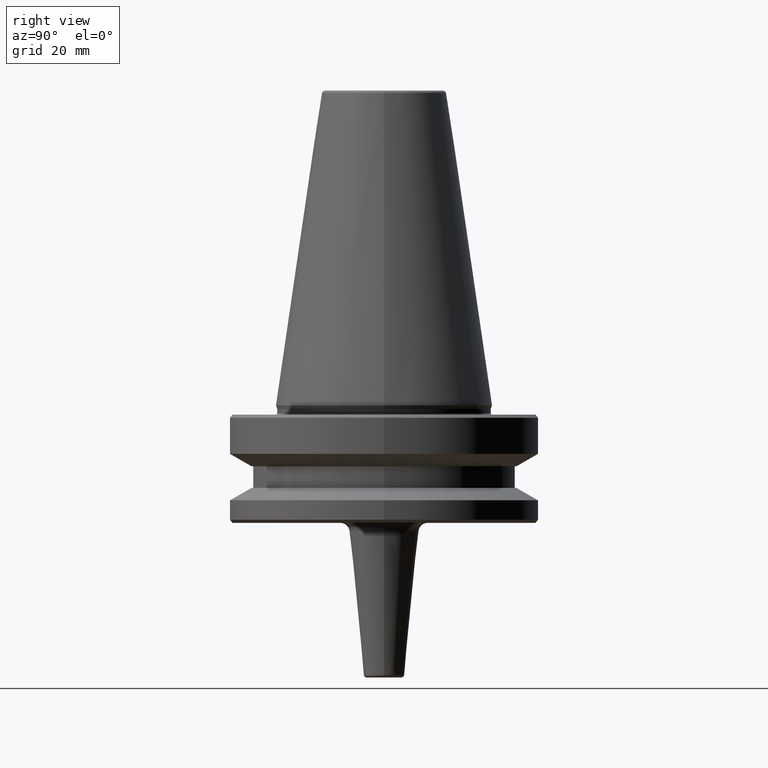
[diagram: clean part render]
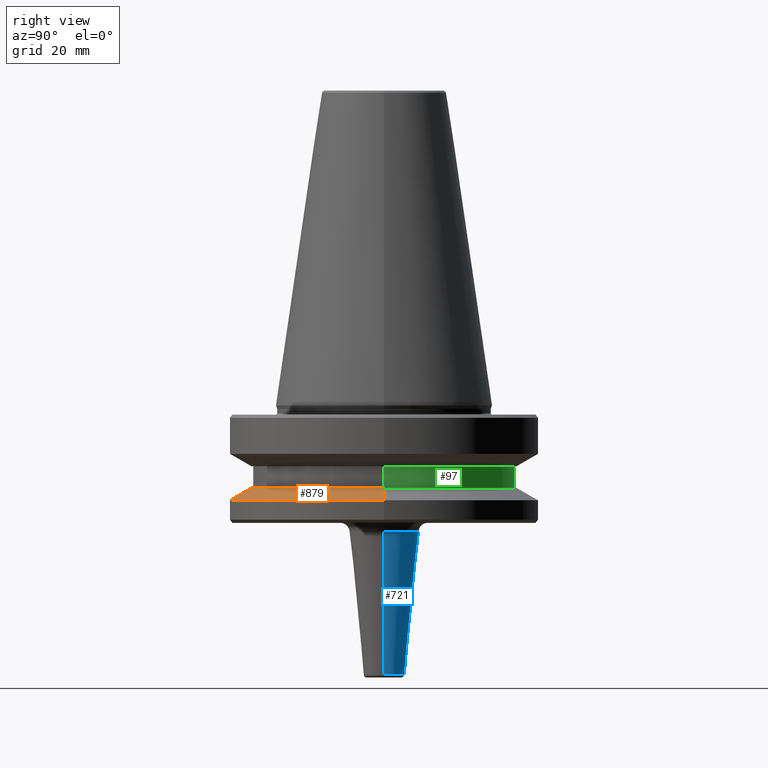
[diagram: same view with three faces highlighted in distinct colors, each labeled with its STEP entity id]
A machine part, right view with three faces highlighted in distinct colors.
Their STEP definitions:

[orange] entity #879 — the highlighted conical surface has half-angle 60 deg.
#6 = AXIS2_PLACEMENT_3D ( 'NONE', #698, #837, #51 ) ;
#46 = AXIS2_PLACEMENT_3D ( 'NONE', #696, #863, #950 ) ;
#51 = DIRECTION ( 'NONE',  ( 1.000000000000000000, 0.0000000000000000000, 0.0000000000000000000 ) ) ;
#122 = VERTEX_POINT ( 'NONE', #685 ) ;
#128 = LINE ( 'NONE', #849, #940 ) ;
#136 = EDGE_LOOP ( 'NONE', ( #668, #662, #163, #933 ) ) ;
#163 = ORIENTED_EDGE ( 'NONE', *, *, #255, .T. ) ;
#174 = VERTEX_POINT ( 'NONE', #926 ) ;
#217 = EDGE_CURVE ( 'NONE', #174, #219, #688, .T. ) ;
#219 = VERTEX_POINT ( 'NONE', #342 ) ;
#220 = DIRECTION ( 'NONE',  ( -0.8660254037844383700, 0.0000000000000000000, -0.5000000000000004400 ) ) ;
#243 = VERTEX_POINT ( 'NONE', #682 ) ;
#255 = EDGE_CURVE ( 'NONE', #122, #243, #128, .T. ) ;
#265 = EDGE_CURVE ( 'NONE', #243, #219, #734, .T. ) ;
#332 = EDGE_CURVE ( 'NONE', #122, #174, #632, .T. ) ;
#342 = CARTESIAN_POINT ( 'NONE',  ( 50.00000000000000000, 0.0000000000000000000, -30.69977999677324500 ) ) ;
#381 = DIRECTION ( 'NONE',  ( 1.000000000000000000, 0.0000000000000000000, 0.0000000000000000000 ) ) ;
#385 = DIRECTION ( 'NONE',  ( 0.8660254037844383700, 1.060575238724906500E-016, -0.5000000000000004400 ) ) ;
#410 = AXIS2_PLACEMENT_3D ( 'NONE', #780, #934, #381 ) ;
#632 = CIRCLE ( 'NONE', #410, 43.07217782649105000 ) ;
#633 = CARTESIAN_POINT ( 'NONE',  ( 50.00000000000000000, 6.123233995736766100E-015, -30.69977999677324500 ) ) ;
#662 = ORIENTED_EDGE ( 'NONE', *, *, #332, .F. ) ;
#668 = ORIENTED_EDGE ( 'NONE', *, *, #217, .F. ) ;
#682 = CARTESIAN_POINT ( 'NONE',  ( -50.00000000000000000, 6.123233995736766100E-015, -30.69977999677324500 ) ) ;
#685 = CARTESIAN_POINT ( 'NONE',  ( -43.07217782649105000, 0.0000000000000000000, -26.69999999999998900 ) ) ;
#688 = LINE ( 'NONE', #633, #864 ) ;
#696 = CARTESIAN_POINT ( 'NONE',  ( 0.0000000000000000000, 0.0000000000000000000, -30.69977999677324500 ) ) ;
#698 = CARTESIAN_POINT ( 'NONE',  ( 0.0000000000000000000, 0.0000000000000000000, -30.69977999677324500 ) ) ;
#733 = FACE_OUTER_BOUND ( 'NONE', #136, .T. ) ;
#734 = CIRCLE ( 'NONE', #6, 50.00000000000000000 ) ;
#780 = CARTESIAN_POINT ( 'NONE',  ( 0.0000000000000000000, 0.0000000000000000000, -26.69999999999998900 ) ) ;
#837 = DIRECTION ( 'NONE',  ( -0.0000000000000000000, -0.0000000000000000000, 1.000000000000000000 ) ) ;
#849 = CARTESIAN_POINT ( 'NONE',  ( -50.00000000000000000, 0.0000000000000000000, -30.69977999677324500 ) ) ;
#863 = DIRECTION ( 'NONE',  ( 0.0000000000000000000, 0.0000000000000000000, -1.000000000000000000 ) ) ;
#864 = VECTOR ( 'NONE', #385, 1000.000000000000000 ) ;
#879 = ADVANCED_FACE ( 'NONE', ( #733 ), #906, .T. ) ;
#906 = CONICAL_SURFACE ( 'NONE', #46, 50.00000000000000000, 1.047197551196597200 ) ;
#926 = CARTESIAN_POINT ( 'NONE',  ( 43.07217782649105000, 5.699027233244276800E-015, -26.69999999999998900 ) ) ;
#933 = ORIENTED_EDGE ( 'NONE', *, *, #265, .T. ) ;
#934 = DIRECTION ( 'NONE',  ( -0.0000000000000000000, -0.0000000000000000000, 1.000000000000000000 ) ) ;
#940 = VECTOR ( 'NONE', #220, 1000.000000000000000 ) ;
#950 = DIRECTION ( 'NONE',  ( -1.000000000000000000, 0.0000000000000000000, 0.0000000000000000000 ) ) ;

[blue] entity #721 — the highlighted conical surface has half-angle 5.711 deg.
#1 = ORIENTED_EDGE ( 'NONE', *, *, #649, .T. ) ;
#21 = DIRECTION ( 'NONE',  ( -0.09950371902099863800, 1.218569110023235800E-017, 0.9950371902099891500 ) ) ;
#63 = CARTESIAN_POINT ( 'NONE',  ( -6.590049628097950100, 8.070483183272360100E-016, -87.09950371902103000 ) ) ;
#87 = ORIENTED_EDGE ( 'NONE', *, *, #429, .F. ) ;
#107 = CARTESIAN_POINT ( 'NONE',  ( -11.22985111570633900, 1.375260122375110100E-015, -40.70148884293698900 ) ) ;
#111 = AXIS2_PLACEMENT_3D ( 'NONE', #457, #544, #628 ) ;
#120 = VECTOR ( 'NONE', #21, 1000.000000000000200 ) ;
#273 = DIRECTION ( 'NONE',  ( 0.09950371902099863800, 0.0000000000000000000, 0.9950371902099891500 ) ) ;
#369 = DIRECTION ( 'NONE',  ( 1.000000000000000000, 0.0000000000000000000, 0.0000000000000000000 ) ) ;
#402 = EDGE_CURVE ( 'NONE', #523, #712, #994, .T. ) ;
#429 = EDGE_CURVE ( 'NONE', #523, #697, #793, .T. ) ;
#442 = CARTESIAN_POINT ( 'NONE',  ( 0.0000000000000000000, 0.0000000000000000000, -87.09950371902103000 ) ) ;
#457 = CARTESIAN_POINT ( 'NONE',  ( 0.0000000000000000000, 0.0000000000000000000, -40.70148884293698900 ) ) ;
#474 = AXIS2_PLACEMENT_3D ( 'NONE', #615, #921, #369 ) ;
#482 = EDGE_CURVE ( 'NONE', #712, #559, #919, .T. ) ;
#483 = ORIENTED_EDGE ( 'NONE', *, *, #402, .T. ) ;
#523 = VERTEX_POINT ( 'NONE', #897 ) ;
#544 = DIRECTION ( 'NONE',  ( 0.0000000000000000000, 0.0000000000000000000, -1.000000000000000000 ) ) ;
#559 = VERTEX_POINT ( 'NONE', #107 ) ;
#580 = CIRCLE ( 'NONE', #111, 11.22985111570633700 ) ;
#581 = VECTOR ( 'NONE', #273, 1000.000000000000200 ) ;
#595 = CONICAL_SURFACE ( 'NONE', #474, 11.50000000000003700, 0.09966865249116174700 ) ;
#598 = CARTESIAN_POINT ( 'NONE',  ( 11.50000000000003700, 0.0000000000000000000, -38.00000000000000700 ) ) ;
#615 = CARTESIAN_POINT ( 'NONE',  ( 0.0000000000000000000, 0.0000000000000000000, -38.00000000000000700 ) ) ;
#623 = FACE_OUTER_BOUND ( 'NONE', #868, .T. ) ;
#628 = DIRECTION ( 'NONE',  ( -1.000000000000000000, 0.0000000000000000000, 0.0000000000000000000 ) ) ;
#630 = AXIS2_PLACEMENT_3D ( 'NONE', #442, #978, #905 ) ;
#649 = EDGE_CURVE ( 'NONE', #559, #697, #580, .T. ) ;
#697 = VERTEX_POINT ( 'NONE', #885 ) ;
#712 = VERTEX_POINT ( 'NONE', #63 ) ;
#721 = ADVANCED_FACE ( 'NONE', ( #623 ), #595, .T. ) ;
#793 = LINE ( 'NONE', #598, #581 ) ;
#811 = ORIENTED_EDGE ( 'NONE', *, *, #482, .T. ) ;
#868 = EDGE_LOOP ( 'NONE', ( #483, #811, #1, #87 ) ) ;
#884 = CARTESIAN_POINT ( 'NONE',  ( -11.50000000000003700, 1.408343819019460700E-015, -38.00000000000000700 ) ) ;
#885 = CARTESIAN_POINT ( 'NONE',  ( 11.22985111570633900, 0.0000000000000000000, -40.70148884293698900 ) ) ;
#897 = CARTESIAN_POINT ( 'NONE',  ( 6.590049628097950100, 0.0000000000000000000, -87.09950371902103000 ) ) ;
#905 = DIRECTION ( 'NONE',  ( 1.000000000000000000, 0.0000000000000000000, 0.0000000000000000000 ) ) ;
#919 = LINE ( 'NONE', #884, #120 ) ;
#921 = DIRECTION ( 'NONE',  ( -0.0000000000000000000, -0.0000000000000000000, 1.000000000000000000 ) ) ;
#978 = DIRECTION ( 'NONE',  ( -0.0000000000000000000, -0.0000000000000000000, 1.000000000000000000 ) ) ;
#994 = CIRCLE ( 'NONE', #630, 6.590049628097949300 ) ;

[green] entity #97 — the highlighted cylindrical surface (partial cylindrical patch) has radius 42.5 mm, axis along (-0, -0, 1).
#17 = CARTESIAN_POINT ( 'NONE',  ( -42.50000000000000000, 5.204748896376250900E-015, -19.70000000000001000 ) ) ;
#37 = DIRECTION ( 'NONE',  ( 1.000000000000000000, 0.0000000000000000000, 0.0000000000000000000 ) ) ;
#68 = ORIENTED_EDGE ( 'NONE', *, *, #502, .F. ) ;
#97 = ADVANCED_FACE ( 'NONE', ( #383 ), #154, .T. ) ;
#110 = DIRECTION ( 'NONE',  ( -0.0000000000000000000, -0.0000000000000000000, 1.000000000000000000 ) ) ;
#130 = AXIS2_PLACEMENT_3D ( 'NONE', #420, #447, #37 ) ;
#154 = CYLINDRICAL_SURFACE ( 'NONE', #430, 42.50000000000000000 ) ;
#205 = LINE ( 'NONE', #700, #233 ) ;
#223 = EDGE_CURVE ( 'NONE', #259, #345, #258, .T. ) ;
#233 = VECTOR ( 'NONE', #852, 1000.000000000000000 ) ;
#258 = CIRCLE ( 'NONE', #648, 42.50000000000000000 ) ;
#259 = VERTEX_POINT ( 'NONE', #840 ) ;
#263 = VERTEX_POINT ( 'NONE', #534 ) ;
#292 = EDGE_CURVE ( 'NONE', #259, #263, #910, .T. ) ;
#312 = DIRECTION ( 'NONE',  ( 1.000000000000000000, 0.0000000000000000000, 0.0000000000000000000 ) ) ;
#340 = EDGE_CURVE ( 'NONE', #345, #883, #205, .T. ) ;
#345 = VERTEX_POINT ( 'NONE', #584 ) ;
#372 = DIRECTION ( 'NONE',  ( -0.0000000000000000000, -0.0000000000000000000, 1.000000000000000000 ) ) ;
#383 = FACE_OUTER_BOUND ( 'NONE', #565, .T. ) ;
#389 = DIRECTION ( 'NONE',  ( -0.0000000000000000000, -0.0000000000000000000, 1.000000000000000000 ) ) ;
#420 = CARTESIAN_POINT ( 'NONE',  ( 0.0000000000000000000, 0.0000000000000000000, -19.70000000000001000 ) ) ;
#430 = AXIS2_PLACEMENT_3D ( 'NONE', #767, #372, #530 ) ;
#447 = DIRECTION ( 'NONE',  ( -0.0000000000000000000, -0.0000000000000000000, 1.000000000000000000 ) ) ;
#502 = EDGE_CURVE ( 'NONE', #263, #883, #730, .T. ) ;
#530 = DIRECTION ( 'NONE',  ( 1.000000000000000000, 0.0000000000000000000, 0.0000000000000000000 ) ) ;
#534 = CARTESIAN_POINT ( 'NONE',  ( 42.50000000000000000, 0.0000000000000000000, -19.70000000000001000 ) ) ;
#565 = EDGE_LOOP ( 'NONE', ( #683, #719, #68, #641 ) ) ;
#584 = CARTESIAN_POINT ( 'NONE',  ( -42.50000000000000000, 5.204748896376250900E-015, -26.69999999999998900 ) ) ;
#641 = ORIENTED_EDGE ( 'NONE', *, *, #292, .F. ) ;
#648 = AXIS2_PLACEMENT_3D ( 'NONE', #676, #389, #312 ) ;
#659 = VECTOR ( 'NONE', #110, 1000.000000000000000 ) ;
#676 = CARTESIAN_POINT ( 'NONE',  ( 0.0000000000000000000, 0.0000000000000000000, -26.69999999999998900 ) ) ;
#683 = ORIENTED_EDGE ( 'NONE', *, *, #223, .T. ) ;
#700 = CARTESIAN_POINT ( 'NONE',  ( -42.50000000000000000, 5.204748896376250900E-015, 124.5046326327850600 ) ) ;
#719 = ORIENTED_EDGE ( 'NONE', *, *, #340, .T. ) ;
#730 = CIRCLE ( 'NONE', #130, 42.50000000000000000 ) ;
#767 = CARTESIAN_POINT ( 'NONE',  ( 0.0000000000000000000, 0.0000000000000000000, 124.5046326327850600 ) ) ;
#840 = CARTESIAN_POINT ( 'NONE',  ( 42.50000000000000000, 0.0000000000000000000, -26.69999999999998900 ) ) ;
#852 = DIRECTION ( 'NONE',  ( -0.0000000000000000000, -0.0000000000000000000, 1.000000000000000000 ) ) ;
#883 = VERTEX_POINT ( 'NONE', #17 ) ;
#910 = LINE ( 'NONE', #986, #659 ) ;
#986 = CARTESIAN_POINT ( 'NONE',  ( 42.50000000000000000, 0.0000000000000000000, 124.5046326327850600 ) ) ;